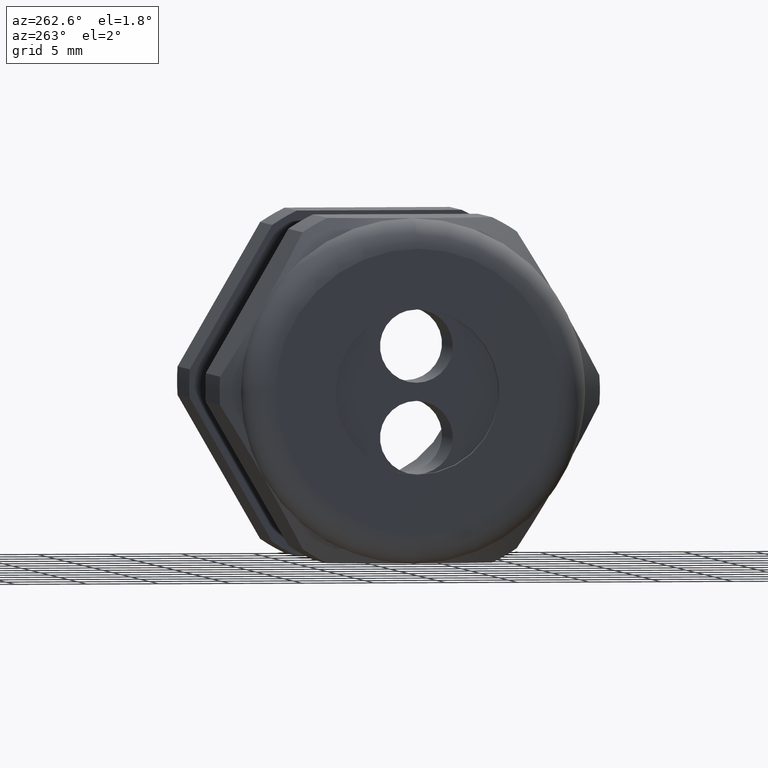
[diagram: clean part render]
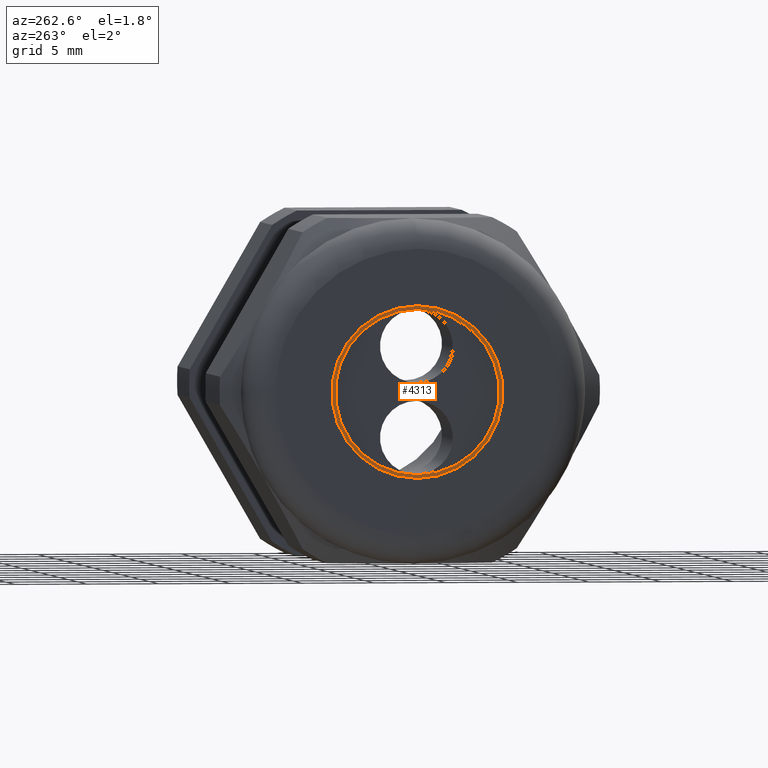
[diagram: same view with one face highlighted and labeled with its STEP entity id]
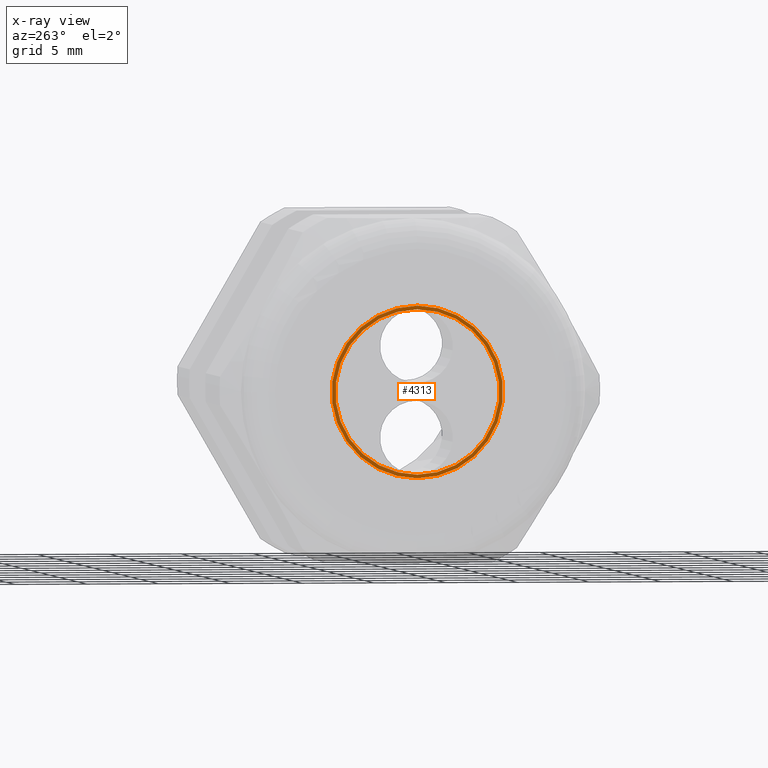
[diagram: x-ray of the same camera — body ghosted, the highlighted face saturated]
A machine part, auxiliary view. The second image highlights one B-rep face of the part: STEP entity #4313.
The next image is the same camera in x-ray: the body ghosted, the highlighted face saturated — about 0% of this face is hidden behind the body in this view.
In plain terms, the highlighted planar face has unit normal (-1, 0, 0).
Its self-contained STEP definition (entity closure, byte-faithful):
#252 = VERTEX_POINT ( 'NONE', #1580 ) ;
#263 = VERTEX_POINT ( 'NONE', #1562 ) ;
#264 = EDGE_CURVE ( 'NONE', #263, #252, #1560, .T. ) ;
#469 = VERTEX_POINT ( 'NONE', #1939 ) ;
#536 = VERTEX_POINT ( 'NONE', #2005 ) ;
#537 = EDGE_CURVE ( 'NONE', #469, #536, #2004, .T. ) ;
#1556 = DIRECTION ( 'NONE',  ( 0.0000000000000000000, 0.0000000000000000000, 1.000000000000000000 ) ) ;
#1557 = DIRECTION ( 'NONE',  ( -1.000000000000000000, 0.0000000000000000000, 0.0000000000000000000 ) ) ;
#1558 = CARTESIAN_POINT ( 'NONE',  ( -1.370000000000000100, 0.0000000000000000000, 0.0000000000000000000 ) ) ;
#1559 = AXIS2_PLACEMENT_3D ( 'NONE', #1558, #1557, #1556 ) ;
#1560 = CIRCLE ( 'NONE', #1559, 0.2349999999999999900 ) ;
#1562 = CARTESIAN_POINT ( 'NONE',  ( -1.370000000000000100, 0.0000000000000000000, 0.2349999999999999900 ) ) ;
#1580 = CARTESIAN_POINT ( 'NONE',  ( -1.370000000000000100, 2.877919977996279800E-017, -0.2349999999999999900 ) ) ;
#1939 = CARTESIAN_POINT ( 'NONE',  ( -1.370000000000000100, 2.755455298081544500E-017, -0.2249999999999999800 ) ) ;
#2004 = CIRCLE ( 'NONE', #2068, 0.2249999999999999800 ) ;
#2005 = CARTESIAN_POINT ( 'NONE',  ( -1.370000000000000100, 0.0000000000000000000, 0.2249999999999999800 ) ) ;
#2065 = DIRECTION ( 'NONE',  ( 0.0000000000000000000, 0.0000000000000000000, 1.000000000000000000 ) ) ;
#2066 = DIRECTION ( 'NONE',  ( -1.000000000000000000, 0.0000000000000000000, 0.0000000000000000000 ) ) ;
#2067 = CARTESIAN_POINT ( 'NONE',  ( -1.370000000000000100, 0.0000000000000000000, 0.0000000000000000000 ) ) ;
#2068 = AXIS2_PLACEMENT_3D ( 'NONE', #2067, #2066, #2065 ) ;
#3130 = DIRECTION ( 'NONE',  ( 0.0000000000000000000, 0.0000000000000000000, 1.000000000000000000 ) ) ;
#3131 = DIRECTION ( 'NONE',  ( -1.000000000000000000, 0.0000000000000000000, 0.0000000000000000000 ) ) ;
#3132 = CARTESIAN_POINT ( 'NONE',  ( -1.370000000000000100, 0.0000000000000000000, 0.0000000000000000000 ) ) ;
#3133 = AXIS2_PLACEMENT_3D ( 'NONE', #3132, #3131, #3130 ) ;
#3134 = CIRCLE ( 'NONE', #3133, 0.2349999999999999900 ) ;
#3169 = DIRECTION ( 'NONE',  ( 0.0000000000000000000, 0.0000000000000000000, 1.000000000000000000 ) ) ;
#3170 = DIRECTION ( 'NONE',  ( -1.000000000000000000, 0.0000000000000000000, 0.0000000000000000000 ) ) ;
#3171 = CARTESIAN_POINT ( 'NONE',  ( -1.370000000000000100, 0.0000000000000000000, 0.0000000000000000000 ) ) ;
#3172 = AXIS2_PLACEMENT_3D ( 'NONE', #3171, #3170, #3169 ) ;
#3173 = PLANE ( 'NONE',  #3172 ) ;
#3174 = FACE_OUTER_BOUND ( 'NONE', #4314, .T. ) ;
#3175 = FACE_BOUND ( 'NONE', #4312, .T. ) ;
#3176 = DIRECTION ( 'NONE',  ( 0.0000000000000000000, 0.0000000000000000000, 1.000000000000000000 ) ) ;
#3177 = DIRECTION ( 'NONE',  ( -1.000000000000000000, 0.0000000000000000000, 0.0000000000000000000 ) ) ;
#3178 = CARTESIAN_POINT ( 'NONE',  ( -1.370000000000000100, 0.0000000000000000000, 0.0000000000000000000 ) ) ;
#3179 = AXIS2_PLACEMENT_3D ( 'NONE', #3178, #3177, #3176 ) ;
#3180 = CIRCLE ( 'NONE', #3179, 0.2249999999999999800 ) ;
#4218 = EDGE_CURVE ( 'NONE', #252, #263, #3134, .T. ) ;
#4310 = EDGE_CURVE ( 'NONE', #536, #469, #3180, .T. ) ;
#4311 = ORIENTED_EDGE ( 'NONE', *, *, #4310, .F. ) ;
#4312 = EDGE_LOOP ( 'NONE', ( #4311, #4316 ) ) ;
#4313 = ADVANCED_FACE ( 'NONE', ( #3175, #3174 ), #3173, .T. ) ;
#4314 = EDGE_LOOP ( 'NONE', ( #4326, #4324 ) ) ;
#4316 = ORIENTED_EDGE ( 'NONE', *, *, #537, .F. ) ;
#4324 = ORIENTED_EDGE ( 'NONE', *, *, #4218, .T. ) ;
#4326 = ORIENTED_EDGE ( 'NONE', *, *, #264, .T. ) ;